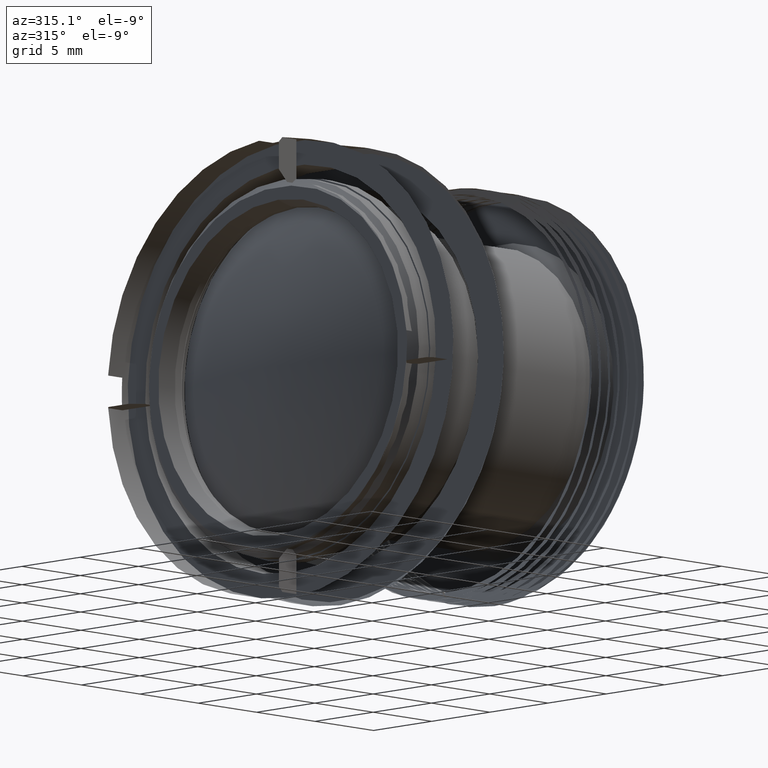
[diagram: clean part render]
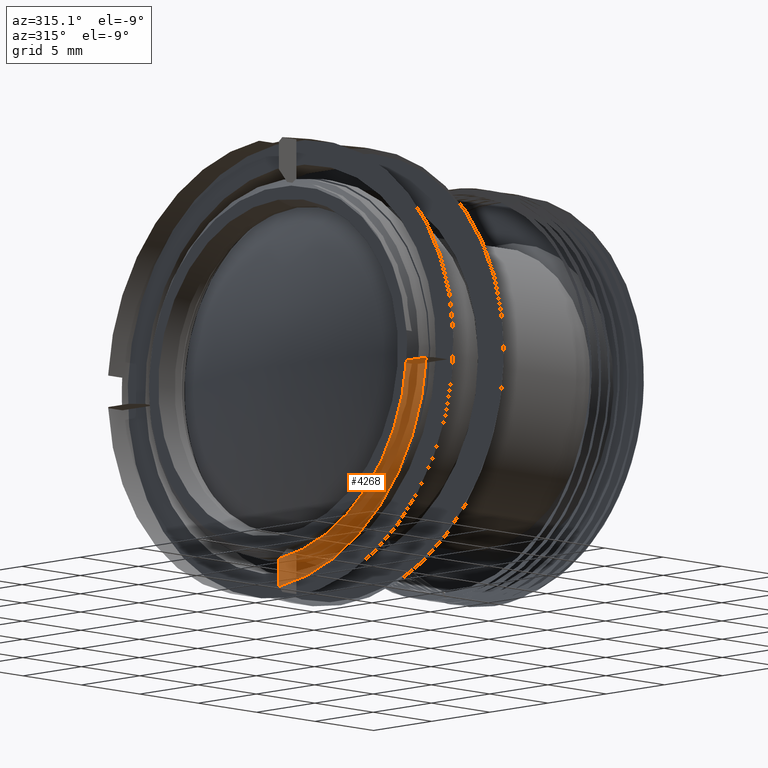
[diagram: same view with one face highlighted and labeled with its STEP entity id]
A machine part, auxiliary view. The second image highlights one B-rep face of the part: STEP entity #4268.
In plain terms, the highlighted planar face has unit normal (1, 0, 0).
Its self-contained STEP definition (entity closure, byte-faithful):
#1 = LINE ( 'NONE', #1981, #1358 ) ;
#289 = VERTEX_POINT ( 'NONE', #4579 ) ;
#436 = AXIS2_PLACEMENT_3D ( 'NONE', #4044, #2350, #4393 ) ;
#503 = VERTEX_POINT ( 'NONE', #1411 ) ;
#604 = CARTESIAN_POINT ( 'NONE',  ( 71.00000000000001421, 0.000000000000000000, 0.000000000000000000 ) ) ;
#852 = EDGE_CURVE ( 'NONE', #289, #503, #1, .T. ) ;
#971 = DIRECTION ( 'NONE',  ( 0.000000000000000000, 0.000000000000000000, -1.000000000000000000 ) ) ;
#1107 = CARTESIAN_POINT ( 'NONE',  ( 71.00000000000001421, 12.00000000000000000, 0.000000000000000000 ) ) ;
#1160 = PLANE ( 'NONE',  #4806 ) ;
#1180 = VECTOR ( 'NONE', #2366, 1000.000000000000000 ) ;
#1296 = CARTESIAN_POINT ( 'NONE',  ( 71.00000000000001421, -1.000000000000044631, -11.95826074310140541 ) ) ;
#1338 = ORIENTED_EDGE ( 'NONE', *, *, #3940, .T. ) ;
#1358 = VECTOR ( 'NONE', #4882, 1000.000000000000000 ) ;
#1411 = CARTESIAN_POINT ( 'NONE',  ( 71.00000000000001421, -13.66345490715909605, -0.9999999999999679146 ) ) ;
#1452 = VERTEX_POINT ( 'NONE', #1296 ) ;
#1536 = LINE ( 'NONE', #1928, #1180 ) ;
#1928 = CARTESIAN_POINT ( 'NONE',  ( 71.00000000000001421, -1.000000000000000000, 3.736410698672605229E-15 ) ) ;
#1981 = CARTESIAN_POINT ( 'NONE',  ( 71.00000000000001421, -2.342910729165049807E-15, -1.000000000000000000 ) ) ;
#2026 = ORIENTED_EDGE ( 'NONE', *, *, #2049, .F. ) ;
#2049 = EDGE_CURVE ( 'NONE', #1452, #2753, #1536, .T. ) ;
#2279 = ORIENTED_EDGE ( 'NONE', *, *, #852, .T. ) ;
#2350 = DIRECTION ( 'NONE',  ( 1.000000000000000000, -0.000000000000000000, -0.000000000000000000 ) ) ;
#2366 = DIRECTION ( 'NONE',  ( 0.000000000000000000, -3.736410698672600496E-15, -1.000000000000000000 ) ) ;
#2714 = DIRECTION ( 'NONE',  ( 1.000000000000000000, 0.000000000000000000, 0.000000000000000000 ) ) ;
#2753 = VERTEX_POINT ( 'NONE', #3797 ) ;
#3165 = EDGE_CURVE ( 'NONE', #289, #1452, #4293, .T. ) ;
#3797 = CARTESIAN_POINT ( 'NONE',  ( 71.00000000000001421, -1.000000000000051070, -13.66345490715909250 ) ) ;
#3801 = DIRECTION ( 'NONE',  ( 1.000000000000000000, 0.000000000000000000, 0.000000000000000000 ) ) ;
#3808 = EDGE_LOOP ( 'NONE', ( #2026, #4291, #2279, #1338 ) ) ;
#3940 = EDGE_CURVE ( 'NONE', #503, #2753, #4973, .T. ) ;
#4044 = CARTESIAN_POINT ( 'NONE',  ( 71.00000000000002842, 0.000000000000000000, 0.000000000000000000 ) ) ;
#4210 = AXIS2_PLACEMENT_3D ( 'NONE', #604, #3801, #971 ) ;
#4268 = ADVANCED_FACE ( 'NONE', ( #4861 ), #1160, .T. ) ;
#4291 = ORIENTED_EDGE ( 'NONE', *, *, #3165, .F. ) ;
#4293 = CIRCLE ( 'NONE', #436, 12.00000000000000355 ) ;
#4393 = DIRECTION ( 'NONE',  ( 0.000000000000000000, 0.000000000000000000, 1.000000000000000000 ) ) ;
#4579 = CARTESIAN_POINT ( 'NONE',  ( 71.00000000000001421, -11.95826074310141074, -0.9999999999999720224 ) ) ;
#4806 = AXIS2_PLACEMENT_3D ( 'NONE', #1107, #2714, #4808 ) ;
#4808 = DIRECTION ( 'NONE',  ( 0.000000000000000000, 0.000000000000000000, -1.000000000000000000 ) ) ;
#4861 = FACE_OUTER_BOUND ( 'NONE', #3808, .T. ) ;
#4882 = DIRECTION ( 'NONE',  ( 0.000000000000000000, -1.000000000000000000, 2.342910729165050201E-15 ) ) ;
#4973 = CIRCLE ( 'NONE', #4210, 13.69999999999890328 ) ;